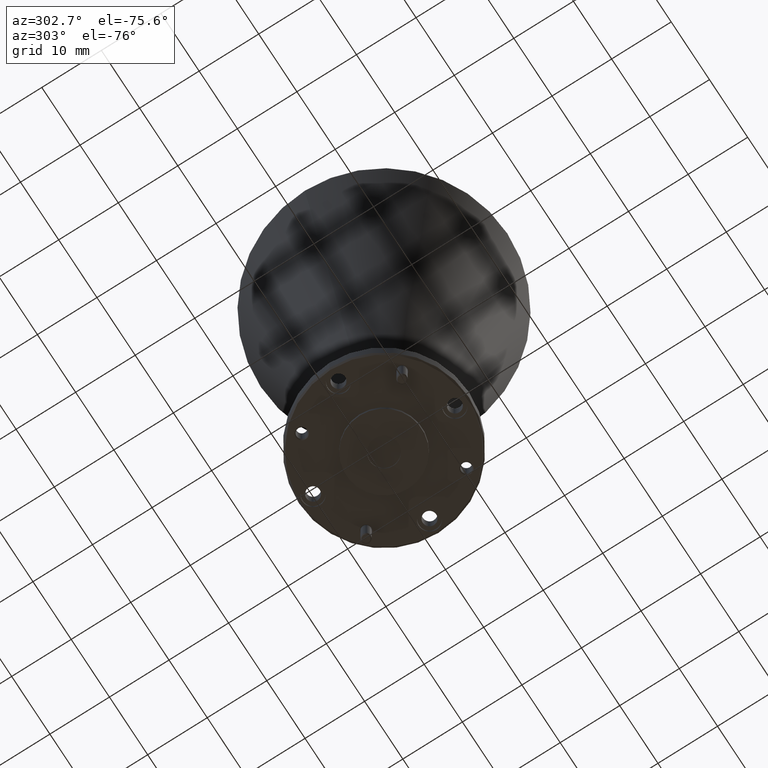
[diagram: clean part render]
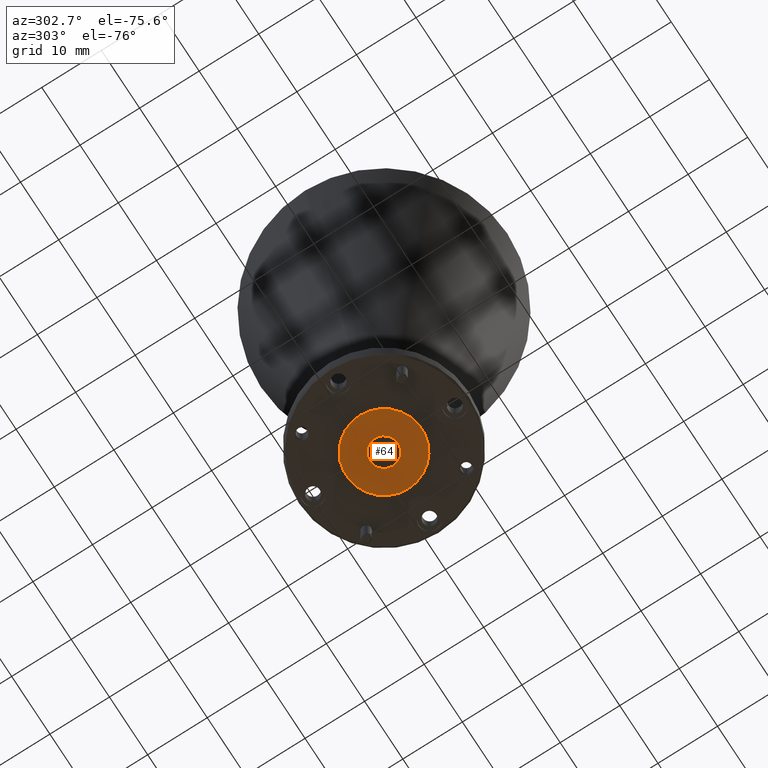
[diagram: same view with one face highlighted and labeled with its STEP entity id]
A machine part, auxiliary view. The second image highlights one B-rep face of the part: STEP entity #64.
In plain terms, the highlighted planar face has unit normal (0, -0, 1).
Its self-contained STEP definition (entity closure, byte-faithful):
#5 = DIRECTION ( 'NONE',  ( -0.0000000000000000000, -0.0000000000000000000, 1.000000000000000000 ) ) ;
#64 = ADVANCED_FACE ( 'NONE', ( #1637, #911 ), #1888, .F. ) ;
#70 = AXIS2_PLACEMENT_3D ( 'NONE', #1682, #191, #1306 ) ;
#79 = CIRCLE ( 'NONE', #70, 0.09400000000000001400 ) ;
#86 = VERTEX_POINT ( 'NONE', #754 ) ;
#91 = ORIENTED_EDGE ( 'NONE', *, *, #1519, .F. ) ;
#92 = DIRECTION ( 'NONE',  ( -0.0000000000000000000, -0.0000000000000000000, 1.000000000000000000 ) ) ;
#191 = DIRECTION ( 'NONE',  ( -0.0000000000000000000, -0.0000000000000000000, 1.000000000000000000 ) ) ;
#250 = EDGE_CURVE ( 'NONE', #965, #266, #1314, .T. ) ;
#253 = DIRECTION ( 'NONE',  ( -0.0000000000000000000, -0.0000000000000000000, 1.000000000000000000 ) ) ;
#260 = CIRCLE ( 'NONE', #810, 0.2500000000000000600 ) ;
#266 = VERTEX_POINT ( 'NONE', #1540 ) ;
#273 = EDGE_CURVE ( 'NONE', #86, #416, #1610, .T. ) ;
#351 = AXIS2_PLACEMENT_3D ( 'NONE', #1047, #92, #736 ) ;
#390 = EDGE_LOOP ( 'NONE', ( #1499, #91 ) ) ;
#416 = VERTEX_POINT ( 'NONE', #1514 ) ;
#599 = CARTESIAN_POINT ( 'NONE',  ( 0.4748216317397033800, 1.383992482487602400, 0.0001361240772534922600 ) ) ;
#645 = CARTESIAN_POINT ( 'NONE',  ( 0.4748216317397033800, 1.133992482487602400, 0.0001361240772529458700 ) ) ;
#705 = CARTESIAN_POINT ( 'NONE',  ( 0.5688216317397033500, 1.133992482487602400, 0.0001361240772529458700 ) ) ;
#736 = DIRECTION ( 'NONE',  ( 1.000000000000000000, 0.0000000000000000000, 0.0000000000000000000 ) ) ;
#754 = CARTESIAN_POINT ( 'NONE',  ( 0.7248216317397034900, 1.133992482487602400, 0.0001361240772529458700 ) ) ;
#810 = AXIS2_PLACEMENT_3D ( 'NONE', #645, #5, #1297 ) ;
#897 = DIRECTION ( 'NONE',  ( 1.000000000000000000, 0.0000000000000000000, 0.0000000000000000000 ) ) ;
#911 = FACE_BOUND ( 'NONE', #2003, .T. ) ;
#965 = VERTEX_POINT ( 'NONE', #705 ) ;
#1015 = EDGE_CURVE ( 'NONE', #266, #965, #79, .T. ) ;
#1031 = CARTESIAN_POINT ( 'NONE',  ( 0.4748216317397033800, 1.133992482487602400, 0.0001361240772529458700 ) ) ;
#1047 = CARTESIAN_POINT ( 'NONE',  ( 0.4748216317397033800, 1.133992482487602400, 0.0001361240772529458700 ) ) ;
#1197 = DIRECTION ( 'NONE',  ( 1.000000000000000000, 0.0000000000000000000, 0.0000000000000000000 ) ) ;
#1297 = DIRECTION ( 'NONE',  ( 1.000000000000000000, 0.0000000000000000000, 0.0000000000000000000 ) ) ;
#1306 = DIRECTION ( 'NONE',  ( 1.000000000000000000, 0.0000000000000000000, 0.0000000000000000000 ) ) ;
#1314 = CIRCLE ( 'NONE', #1621, 0.09400000000000001400 ) ;
#1499 = ORIENTED_EDGE ( 'NONE', *, *, #273, .F. ) ;
#1514 = CARTESIAN_POINT ( 'NONE',  ( 0.2248216317397033800, 1.133992482487602400, 0.0001361240772529458700 ) ) ;
#1519 = EDGE_CURVE ( 'NONE', #416, #86, #260, .T. ) ;
#1540 = CARTESIAN_POINT ( 'NONE',  ( 0.3808216317397033500, 1.133992482487602400, 0.0001361240772529458700 ) ) ;
#1566 = DIRECTION ( 'NONE',  ( 0.0000000000000000000, -0.0000000000000000000, 1.000000000000000000 ) ) ;
#1610 = CIRCLE ( 'NONE', #351, 0.2500000000000000600 ) ;
#1621 = AXIS2_PLACEMENT_3D ( 'NONE', #1031, #253, #1197 ) ;
#1637 = FACE_OUTER_BOUND ( 'NONE', #390, .T. ) ;
#1682 = CARTESIAN_POINT ( 'NONE',  ( 0.4748216317397033800, 1.133992482487602400, 0.0001361240772529458700 ) ) ;
#1704 = AXIS2_PLACEMENT_3D ( 'NONE', #599, #1566, #897 ) ;
#1819 = ORIENTED_EDGE ( 'NONE', *, *, #250, .T. ) ;
#1888 = PLANE ( 'NONE',  #1704 ) ;
#1908 = ORIENTED_EDGE ( 'NONE', *, *, #1015, .T. ) ;
#2003 = EDGE_LOOP ( 'NONE', ( #1819, #1908 ) ) ;